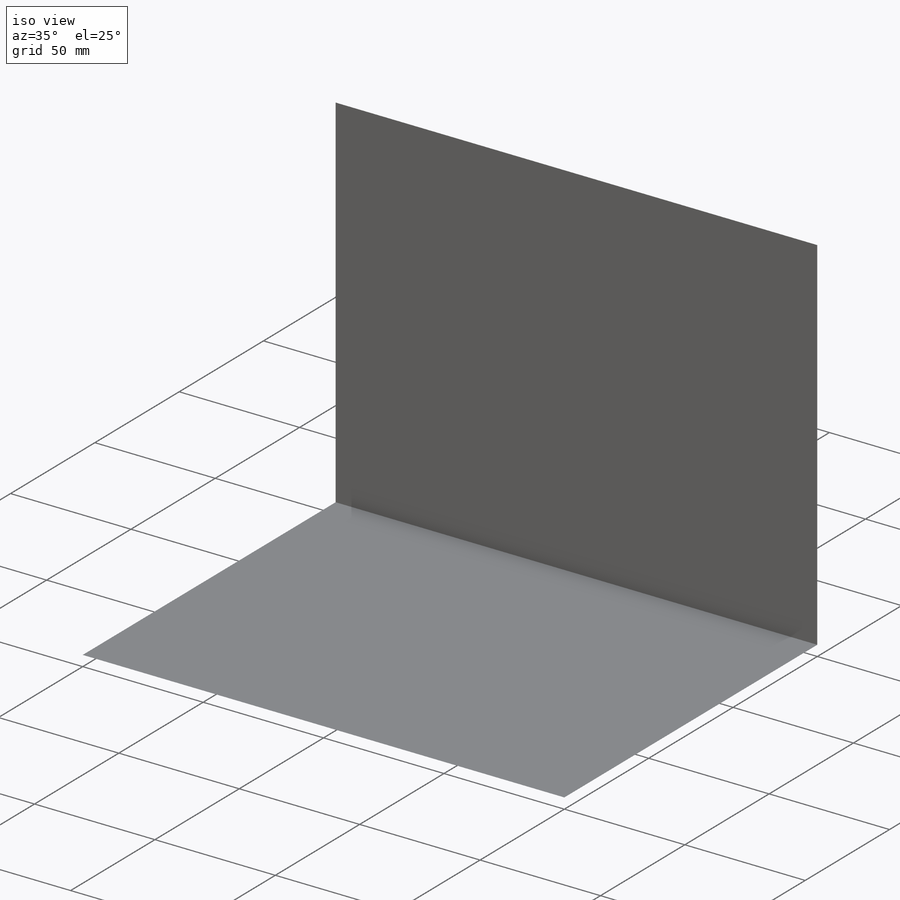
[diagram: iso view]
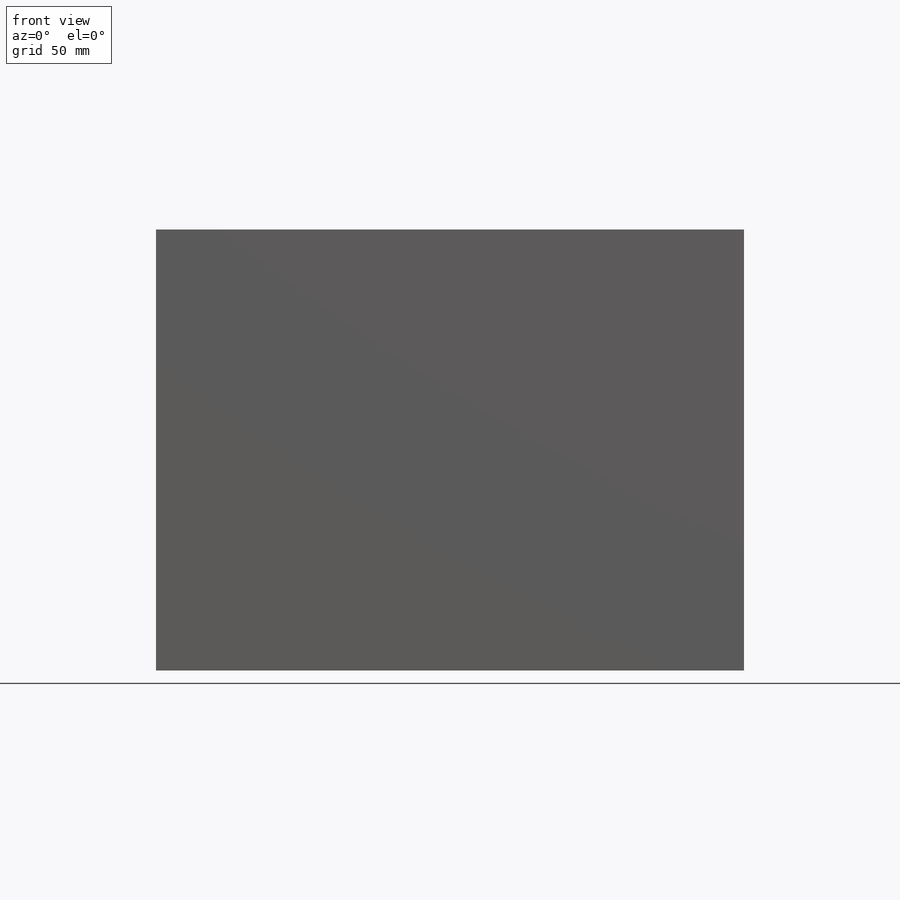
[diagram: front view]
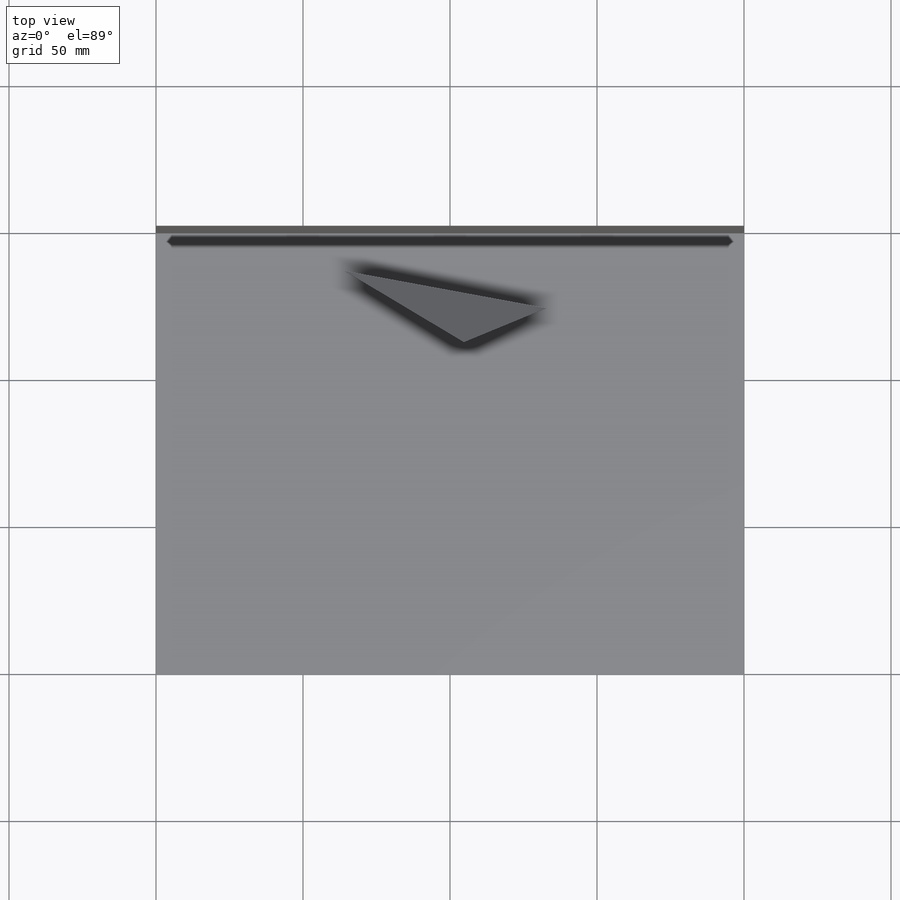
[diagram: top view]
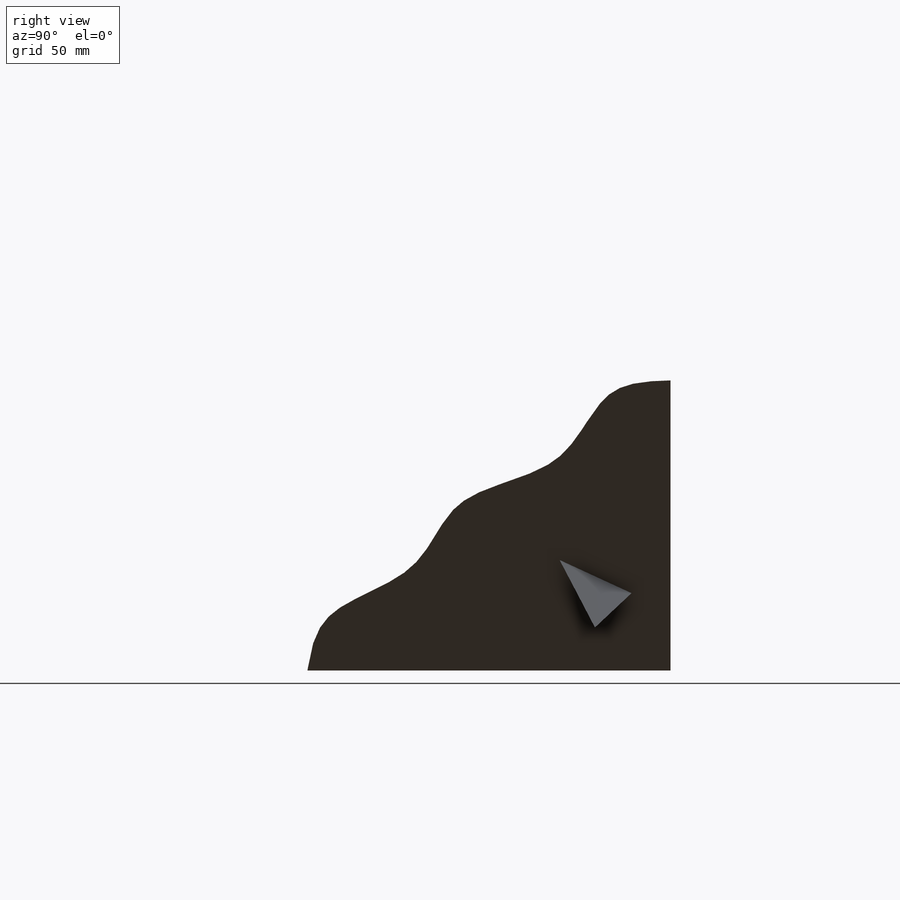
[diagram: right view]
SOLIDWORKS PART (.sldprt)
format: sldprt  version: not decoded by parser v0  size: 293,376 bytes
history: native  units: mm
features: sketch x11, extrude x2, plane x2, material x1 (+13 scaffold rows collapsed)
feature tree (29):
  scaffold x13  (default folders/planes/origin — collapsed)
  material  "Material <not specified>"
  sketch  "Sketch1"  dims[D1=150.0mm D2=200.0mm]
  extrude  "Extrude1"  Depth=0.0001mm
  sketch  "Sketch2"  dims[D1=150.0mm D2=200.0mm]
  extrude  "Extrude2"  Depth=0.0001mm
  sketch  "Sketch3"  dims[c1.D1=200.0mm c2.D1=55.0deg]
  sketch  "Sketch4"  dims[c1.D1=200.0mm c2.D1=45.0deg]
  sketch  "3DSketch1"
  sketch  "Sketch5"
  sketch  "Sketch6"  dims[c1.D1=~172.027615mm c2.D1=35.0deg]
  sketch  "Sketch8"  dims[c1.D1=~174.625938mm c2.D1=45.0deg]
  sketch  "3DSketch2"
  sketch  "Sketch9"
  plane  "Plane1"
  plane  "Plane2"  Offset=70mm
  sketch  "Sketch10"  dims[D1=25.0mm D2=~69.301379mm]
decode coverage: 9 of 13 modeling features carry decoded parameters
note: ~ marks probable driven/reference dimensions
note: suppression state not decoded; provenance and decode notes live in map.json
